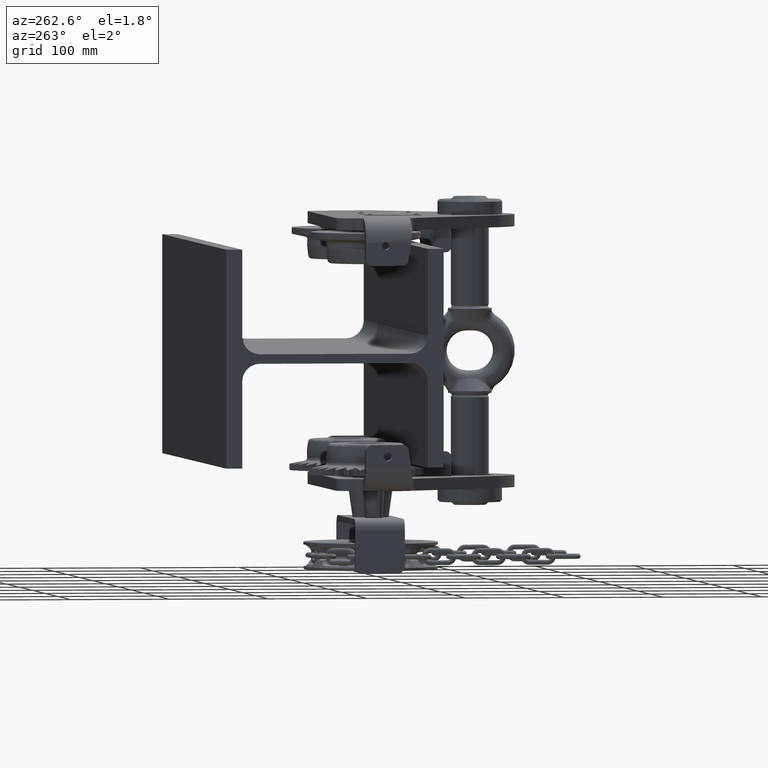
[diagram: clean part render]
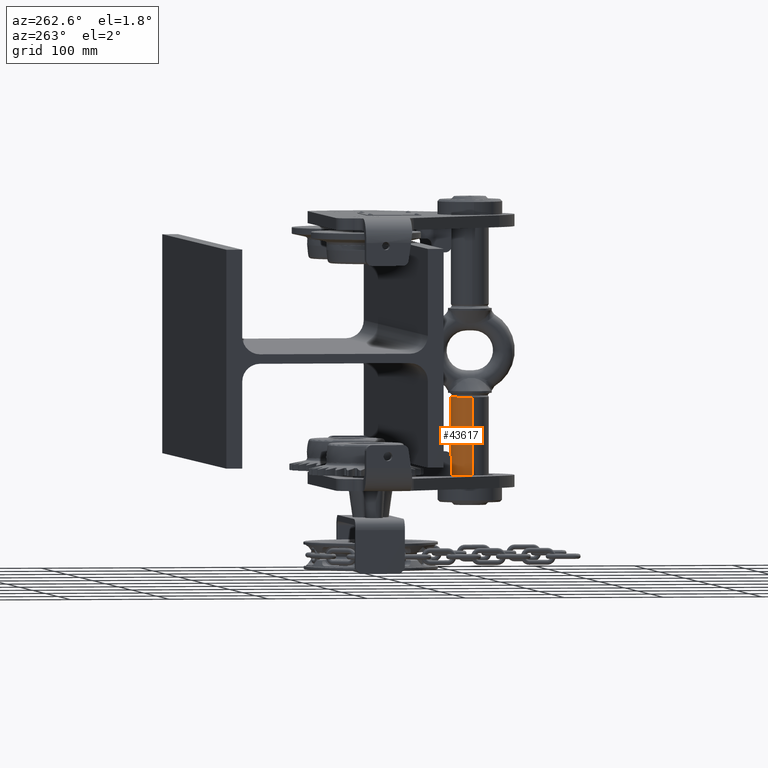
[diagram: same view with one face highlighted and labeled with its STEP entity id]
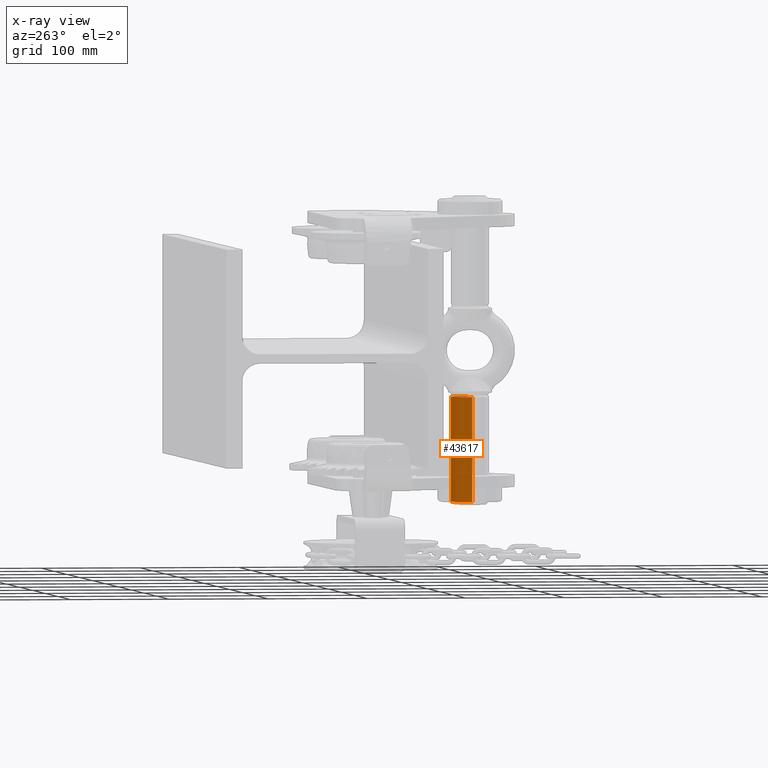
[diagram: x-ray of the same camera — body ghosted, the highlighted face saturated]
A machine part, auxiliary view. The second image highlights one B-rep face of the part: STEP entity #43617.
The next image is the same camera in x-ray: the body ghosted, the highlighted face saturated — about 1% of this face is hidden behind the body in this view.
In plain terms, the highlighted cylindrical surface (edge-blend (fillet) strip) has radius 19 mm, axis along (-0, -0, -1).
Its self-contained STEP definition (entity closure, byte-faithful):
#665 = CARTESIAN_POINT ( 'NONE',  ( 18.99999999999987600, -168.9999999999998900, -46.59348674296335000 ) ) ;
#2208 = VERTEX_POINT ( 'NONE', #76160 ) ;
#3745 = VERTEX_POINT ( 'NONE', #665 ) ;
#5330 = EDGE_CURVE ( 'NONE', #3745, #2208, #86048, .T. ) ;
#6562 = CIRCLE ( 'NONE', #87428, 19.00000000000000000 ) ;
#9119 = ORIENTED_EDGE ( 'NONE', *, *, #65179, .T. ) ;
#9141 = LINE ( 'NONE', #86603, #14396 ) ;
#10460 = AXIS2_PLACEMENT_3D ( 'NONE', #59867, #60972, #102621 ) ;
#14077 = CIRCLE ( 'NONE', #101294, 19.00000000000000000 ) ;
#14396 = VECTOR ( 'NONE', #87647, 1000.000000000000000 ) ;
#17693 = CARTESIAN_POINT ( 'NONE',  ( -19.00000000000013100, -168.9999999999998900, -152.0000000000000000 ) ) ;
#18059 = EDGE_CURVE ( 'NONE', #86602, #69665, #9141, .T. ) ;
#25958 = CYLINDRICAL_SURFACE ( 'NONE', #10460, 19.00000000000000000 ) ;
#29230 = DIRECTION ( 'NONE',  ( 6.932088575135509200E-017, 5.548357037863925300E-017, 1.000000000000000000 ) ) ;
#29595 = EDGE_CURVE ( 'NONE', #3745, #86602, #14077, .T. ) ;
#31693 = ORIENTED_EDGE ( 'NONE', *, *, #29595, .F. ) ;
#40203 = ORIENTED_EDGE ( 'NONE', *, *, #18059, .F. ) ;
#43617 = ADVANCED_FACE ( 'NONE', ( #45750 ), #25958, .T. ) ;
#45750 = FACE_OUTER_BOUND ( 'NONE', #91805, .T. ) ;
#46474 = DIRECTION ( 'NONE',  ( -1.000000000000000000, 0.0000000000000000000, 0.0000000000000000000 ) ) ;
#51682 = DIRECTION ( 'NONE',  ( 6.932088575135509200E-017, 5.548357037863925300E-017, 1.000000000000000000 ) ) ;
#59867 = CARTESIAN_POINT ( 'NONE',  ( -1.342623453266704600E-013, -168.9999999999998900, -167.4491825357096100 ) ) ;
#60972 = DIRECTION ( 'NONE',  ( -6.932088575135509200E-017, -5.548357037863925300E-017, -1.000000000000000000 ) ) ;
#63798 = VECTOR ( 'NONE', #66702, 1000.000000000000000 ) ;
#65179 = EDGE_CURVE ( 'NONE', #2208, #69665, #6562, .T. ) ;
#66702 = DIRECTION ( 'NONE',  ( -6.932088575135509200E-017, -5.548357037863925300E-017, -1.000000000000000000 ) ) ;
#68694 = DIRECTION ( 'NONE',  ( -1.000000000000000000, 0.0000000000000000000, 0.0000000000000000000 ) ) ;
#69665 = VERTEX_POINT ( 'NONE', #17693 ) ;
#76160 = CARTESIAN_POINT ( 'NONE',  ( 18.99999999999986900, -168.9999999999998900, -152.0000000000000000 ) ) ;
#76197 = CARTESIAN_POINT ( 'NONE',  ( 18.99999999999986500, -168.9999999999998900, -167.4491825357096100 ) ) ;
#79482 = CARTESIAN_POINT ( 'NONE',  ( -1.258845214462209800E-013, -168.9999999999998900, -46.59348674296335000 ) ) ;
#86048 = LINE ( 'NONE', #76197, #63798 ) ;
#86602 = VERTEX_POINT ( 'NONE', #96530 ) ;
#86603 = CARTESIAN_POINT ( 'NONE',  ( -19.00000000000013500, -168.9999999999998900, -167.4491825357096100 ) ) ;
#87428 = AXIS2_PLACEMENT_3D ( 'NONE', #101866, #51682, #68694 ) ;
#87647 = DIRECTION ( 'NONE',  ( -6.932088575135509200E-017, -5.548357037863925300E-017, -1.000000000000000000 ) ) ;
#91805 = EDGE_LOOP ( 'NONE', ( #31693, #98592, #9119, #40203 ) ) ;
#96530 = CARTESIAN_POINT ( 'NONE',  ( -19.00000000000012400, -168.9999999999998900, -46.59348674296335000 ) ) ;
#98592 = ORIENTED_EDGE ( 'NONE', *, *, #5330, .T. ) ;
#101294 = AXIS2_PLACEMENT_3D ( 'NONE', #79482, #29230, #46474 ) ;
#101866 = CARTESIAN_POINT ( 'NONE',  ( -1.331913943091607000E-013, -168.9999999999998900, -152.0000000000000000 ) ) ;
#102621 = DIRECTION ( 'NONE',  ( -1.000000000000000000, 0.0000000000000000000, 0.0000000000000000000 ) ) ;